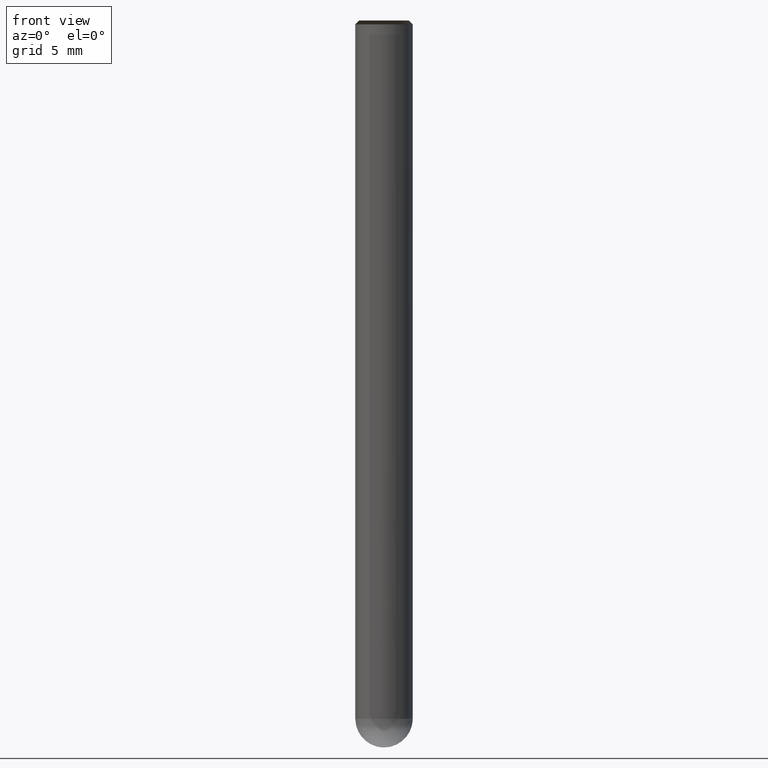
[diagram: clean part render]
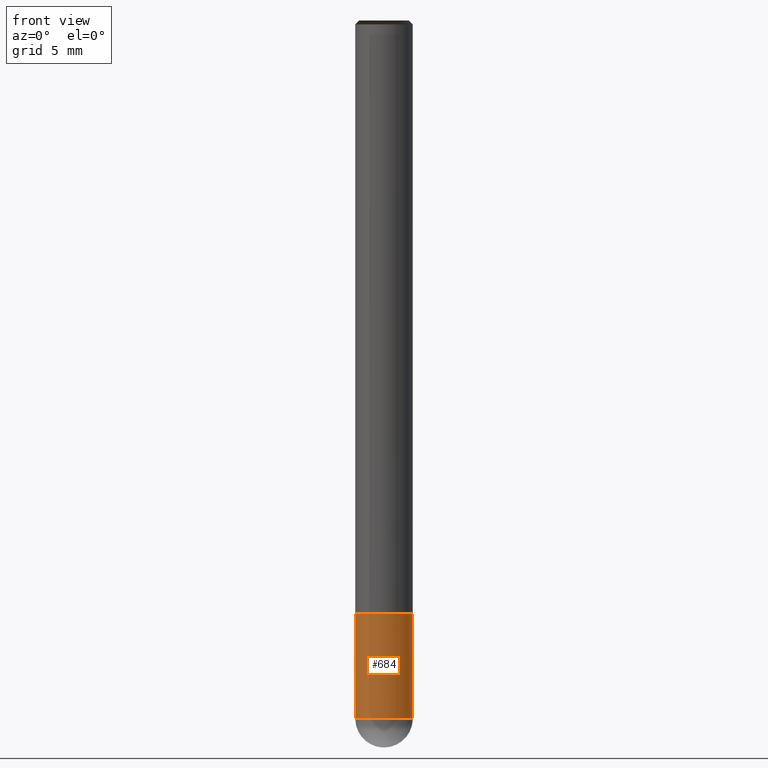
[diagram: same view with one face highlighted and labeled with its STEP entity id]
A machine part, front view. The second image highlights one B-rep face of the part: STEP entity #684.
In plain terms, the highlighted face is a freeform B-spline surface patch.
Its self-contained STEP definition (entity closure, byte-faithful):
#546=CARTESIAN_POINT('',(1.5,0.0,-10.5));
#550=CARTESIAN_POINT('',(-1.5,0.0,-10.5));
#551=CARTESIAN_POINT('',(1.5,0.0,-5.0));
#555=CARTESIAN_POINT('',(-1.5,0.0,-5.0));
#560=CARTESIAN_POINT('',(-1.5,-1.5,-10.5));
#561=CARTESIAN_POINT('',(0.0,-1.5,-10.5));
#562=CARTESIAN_POINT('',(1.5,-1.5,-10.5));
#563=CARTESIAN_POINT('',(-1.5,-1.5,-5.0));
#564=CARTESIAN_POINT('',(0.0,-1.5,-5.0));
#565=CARTESIAN_POINT('',(1.5,-1.5,-5.0));
#665=(
BOUNDED_SURFACE()
B_SPLINE_SURFACE(1,2,(
(#550,#560,#561,#562,#546),
(#555,#563,#564,#565,#551)
), .UNSPECIFIED.,.F.,.F.,.F.)
B_SPLINE_SURFACE_WITH_KNOTS((2,2),(3,2,3),(
0.0,1.0),(
0.0,0.5,1.0), .UNSPECIFIED.)
GEOMETRIC_REPRESENTATION_ITEM()
RATIONAL_B_SPLINE_SURFACE(((1.0,0.707106781187,1.0,0.707106781187,1.0),
(1.0,0.707106781187,1.0,0.707106781187,1.0)
))
REPRESENTATION_ITEM('')
SURFACE()
);
#666=(
BOUNDED_CURVE()
B_SPLINE_CURVE(2,(#546,#562,#561,#560,#550),.UNSPECIFIED.,.F.,.F.)
B_SPLINE_CURVE_WITH_KNOTS((3,2,3),
(0.0,0.5,1.0),.UNSPECIFIED.)
CURVE()
GEOMETRIC_REPRESENTATION_ITEM()
RATIONAL_B_SPLINE_CURVE((1.0,0.707106781187,1.0,0.707106781187,1.0))
REPRESENTATION_ITEM('')
);
#667=(
BOUNDED_CURVE()
B_SPLINE_CURVE(1,(#550,#555),.UNSPECIFIED.,.F.,.F.)
B_SPLINE_CURVE_WITH_KNOTS((2,2),
(0.0,1.0),.UNSPECIFIED.)
CURVE()
GEOMETRIC_REPRESENTATION_ITEM()
RATIONAL_B_SPLINE_CURVE((1.0,1.0))
REPRESENTATION_ITEM('')
);
#668=(
BOUNDED_CURVE()
B_SPLINE_CURVE(2,(#555,#563,#564,#565,#551),.UNSPECIFIED.,.F.,.F.)
B_SPLINE_CURVE_WITH_KNOTS((3,2,3),
(0.0,0.5,1.0),.UNSPECIFIED.)
CURVE()
GEOMETRIC_REPRESENTATION_ITEM()
RATIONAL_B_SPLINE_CURVE((1.0,0.707106781187,1.0,0.707106781187,1.0))
REPRESENTATION_ITEM('')
);
#669=(
BOUNDED_CURVE()
B_SPLINE_CURVE(1,(#551,#546),.UNSPECIFIED.,.F.,.F.)
B_SPLINE_CURVE_WITH_KNOTS((2,2),
(0.0,1.0),.UNSPECIFIED.)
CURVE()
GEOMETRIC_REPRESENTATION_ITEM()
RATIONAL_B_SPLINE_CURVE((1.0,1.0))
REPRESENTATION_ITEM('')
);
#670=VERTEX_POINT('',#546);
#671=VERTEX_POINT('',#550);
#672=VERTEX_POINT('',#551);
#673=VERTEX_POINT('',#555);
#674=EDGE_CURVE('',#670,#671,#666,.T.);
#675=EDGE_CURVE('',#671,#673,#667,.T.);
#676=EDGE_CURVE('',#673,#672,#668,.T.);
#677=EDGE_CURVE('',#672,#670,#669,.T.);
#678=ORIENTED_EDGE('',*,*,#674,.T.);
#679=ORIENTED_EDGE('',*,*,#675,.T.);
#680=ORIENTED_EDGE('',*,*,#676,.T.);
#681=ORIENTED_EDGE('',*,*,#677,.T.);
#682=EDGE_LOOP('',(#678,#679,#680,#681));
#683=FACE_OUTER_BOUND('',#682,.T.);
#684=ADVANCED_FACE('',(#683),#665,.T.);